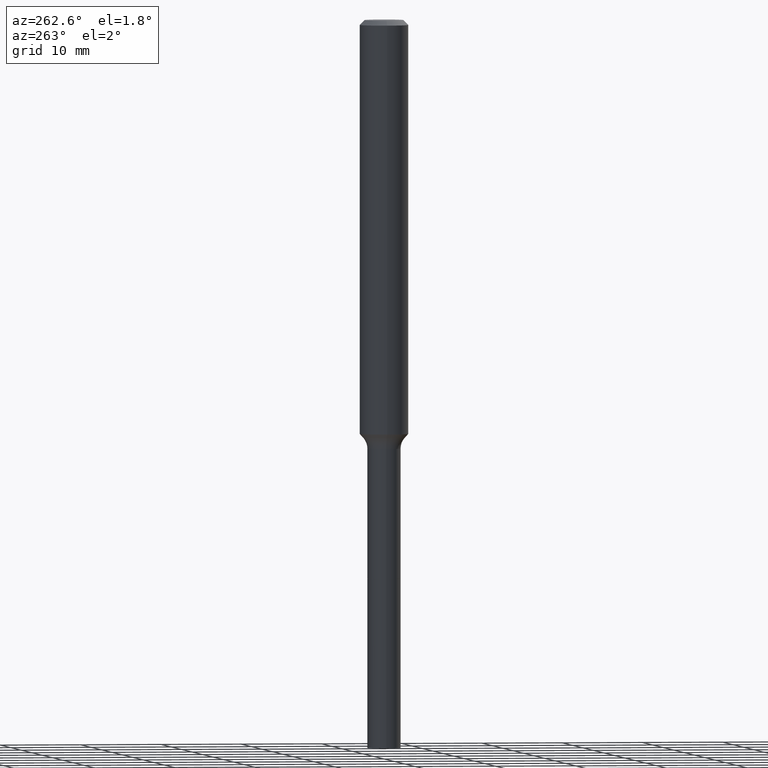
[diagram: clean part render]
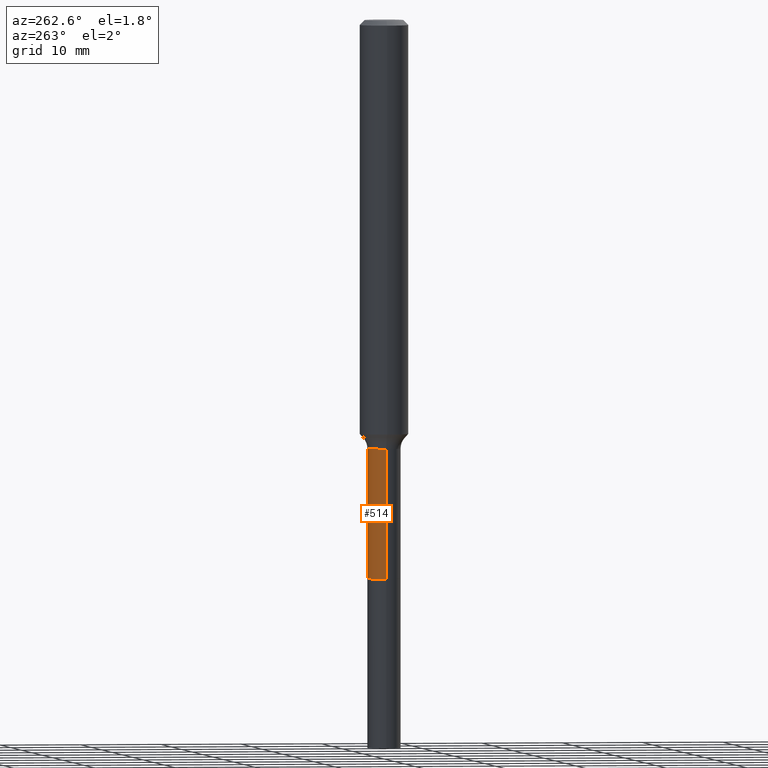
[diagram: same view with one face highlighted and labeled with its STEP entity id]
A machine part, auxiliary view. The second image highlights one B-rep face of the part: STEP entity #514.
In plain terms, the highlighted cylindrical surface (edge-blend (fillet) strip) has radius 2.0498 mm, axis along (-0, 0, 1).
Its self-contained STEP definition (entity closure, byte-faithful):
#16 = CARTESIAN_POINT ( 'NONE',  ( -0.08069999999999995233, -7.815050502879196918E-15, -2.086299999999999599 ) ) ;
#63 = VERTEX_POINT ( 'NONE', #194 ) ;
#71 = LINE ( 'NONE', #156, #333 ) ;
#81 = AXIS2_PLACEMENT_3D ( 'NONE', #189, #230, #386 ) ;
#100 = ORIENTED_EDGE ( 'NONE', *, *, #431, .T. ) ;
#105 = CARTESIAN_POINT ( 'NONE',  ( 0.08070000000000004947, -1.005616455213602517E-14, -2.718799999999999439 ) ) ;
#118 = EDGE_CURVE ( 'NONE', #63, #368, #221, .T. ) ;
#141 = VERTEX_POINT ( 'NONE', #246 ) ;
#152 = VECTOR ( 'NONE', #311, 39.37007874015748143 ) ;
#156 = CARTESIAN_POINT ( 'NONE',  ( -0.08070000000000000784, 5.734079877584009057E-16, -3.969580617835709444E-30 ) ) ;
#158 = LINE ( 'NONE', #346, #152 ) ;
#160 = CARTESIAN_POINT ( 'NONE',  ( 0.000000000000000000, 0.000000000000000000, 0.000000000000000000 ) ) ;
#165 = AXIS2_PLACEMENT_3D ( 'NONE', #428, #400, #447 ) ;
#189 = CARTESIAN_POINT ( 'NONE',  ( 6.648740590256147833E-29, -9.492639464046741726E-15, -2.718799999999999439 ) ) ;
#194 = CARTESIAN_POINT ( 'NONE',  ( 0.08069999999999995233, -7.847802605317735588E-15, -2.086299999999999599 ) ) ;
#215 = EDGE_LOOP ( 'NONE', ( #100, #356, #495, #337 ) ) ;
#219 = VERTEX_POINT ( 'NONE', #105 ) ;
#221 = CIRCLE ( 'NONE', #165, 0.08069999999999995233 ) ;
#226 = DIRECTION ( 'NONE',  ( 1.000000000000000000, -6.982962677686266711E-15, 4.876176775795935793E-29 ) ) ;
#230 = DIRECTION ( 'NONE',  ( -2.445468806185136597E-29, 3.491481338843145583E-15, 1.000000000000000000 ) ) ;
#246 = CARTESIAN_POINT ( 'NONE',  ( -0.08070000000000004947, -7.815050502879196918E-15, -2.718799999999999439 ) ) ;
#266 = FACE_OUTER_BOUND ( 'NONE', #215, .T. ) ;
#268 = DIRECTION ( 'NONE',  ( -2.445468806185136877E-29, 3.491481338843145188E-15, 1.000000000000000000 ) ) ;
#304 = AXIS2_PLACEMENT_3D ( 'NONE', #160, #381, #226 ) ;
#311 = DIRECTION ( 'NONE',  ( -2.445468806185136877E-29, 3.491481338843145188E-15, 1.000000000000000000 ) ) ;
#333 = VECTOR ( 'NONE', #268, 39.37007874015748143 ) ;
#337 = ORIENTED_EDGE ( 'NONE', *, *, #502, .F. ) ;
#346 = CARTESIAN_POINT ( 'NONE',  ( 0.08070000000000000784, -5.635250880892817638E-16, 3.935074658067320359E-30 ) ) ;
#356 = ORIENTED_EDGE ( 'NONE', *, *, #450, .T. ) ;
#368 = VERTEX_POINT ( 'NONE', #16 ) ;
#381 = DIRECTION ( 'NONE',  ( -2.445468806185136597E-29, 3.491481338843145583E-15, 1.000000000000000000 ) ) ;
#386 = DIRECTION ( 'NONE',  ( 1.000000000000000000, -6.982962677686266711E-15, 0.000000000000000000 ) ) ;
#400 = DIRECTION ( 'NONE',  ( -2.445468806185136597E-29, 3.491481338843145583E-15, 1.000000000000000000 ) ) ;
#411 = CIRCLE ( 'NONE', #81, 0.08070000000000004947 ) ;
#428 = CARTESIAN_POINT ( 'NONE',  ( 5.101981570344049922E-29, -7.284277517228453725E-15, -2.086299999999999599 ) ) ;
#431 = EDGE_CURVE ( 'NONE', #219, #141, #411, .T. ) ;
#447 = DIRECTION ( 'NONE',  ( 1.000000000000000000, -6.982962677686264344E-15, 0.000000000000000000 ) ) ;
#450 = EDGE_CURVE ( 'NONE', #141, #368, #71, .T. ) ;
#475 = CYLINDRICAL_SURFACE ( 'NONE', #304, 0.08070000000000000784 ) ;
#495 = ORIENTED_EDGE ( 'NONE', *, *, #118, .F. ) ;
#502 = EDGE_CURVE ( 'NONE', #219, #63, #158, .T. ) ;
#514 = ADVANCED_FACE ( 'NONE', ( #266 ), #475, .T. ) ;